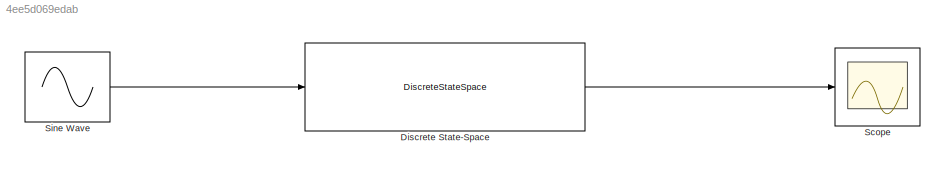
MODEL slx_4ee5d069edab
KIND model
CONFIG AbsTol = auto
CONFIG EnableMultiTasking = off
CONFIG FixedStep = auto
CONFIG MaxStep = auto
CONFIG MinStep = auto
CONFIG RelTol = 1e-3
CONFIG SampleTimeConstraint = Unconstrained
CONFIG SolverName = VariableStepAuto
CONFIG StartTime = 0.0
CONFIG StopTime = 100
BLOCK [DiscreteStateSpace] Discrete State-Space
  A = [-1 0; 1 -1]
  B = [1; 0]
  C = [0 2]
  D = 0
  SampleTime = -1
BLOCK [Scope] Scope
  Floating = off
  NumInputPorts = 1
  ScopeSpecificationString = Simulink.scopes.TimeScopeBlockCfg('CurrentConfiguration', extmgr.ConfigurationSet(extmgr.Configuration('Core','General UI',true),extmgr.Configuration('Core','Source UI',true),extmgr.Configuration('Sources','WiredSimulink',true),extmgr.Configuration('Visuals','Time Domain',true,'SerializedDisplays',{struct('MinYLimReal','-96.51195','MaxYLimReal','95.65713','YLabelReal','','MinYLimMag','0.00000','Ma...<+1346ch>
BLOCK [Sin] Sine Wave
  SampleTime = 0
LINE Discrete State-Space:1 -> Scope:1
LINE Sine Wave:1 -> Discrete State-Space:1
